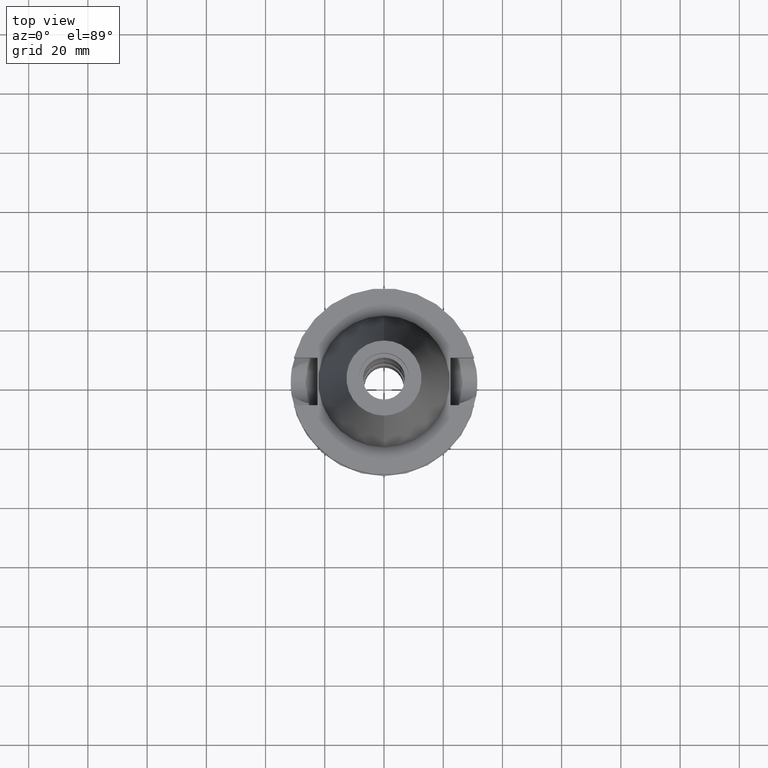
[diagram: clean part render]
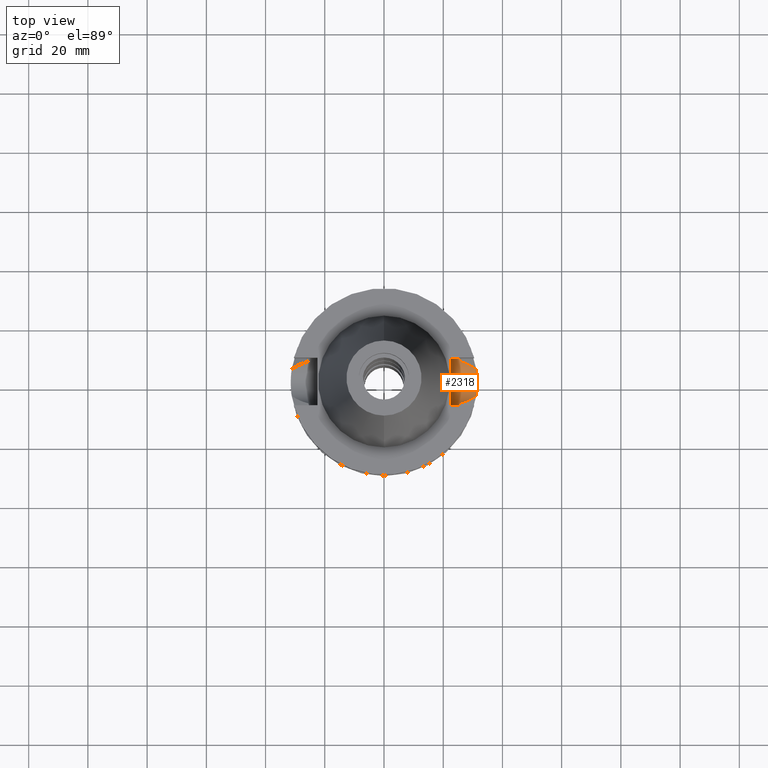
[diagram: same view with one face highlighted and labeled with its STEP entity id]
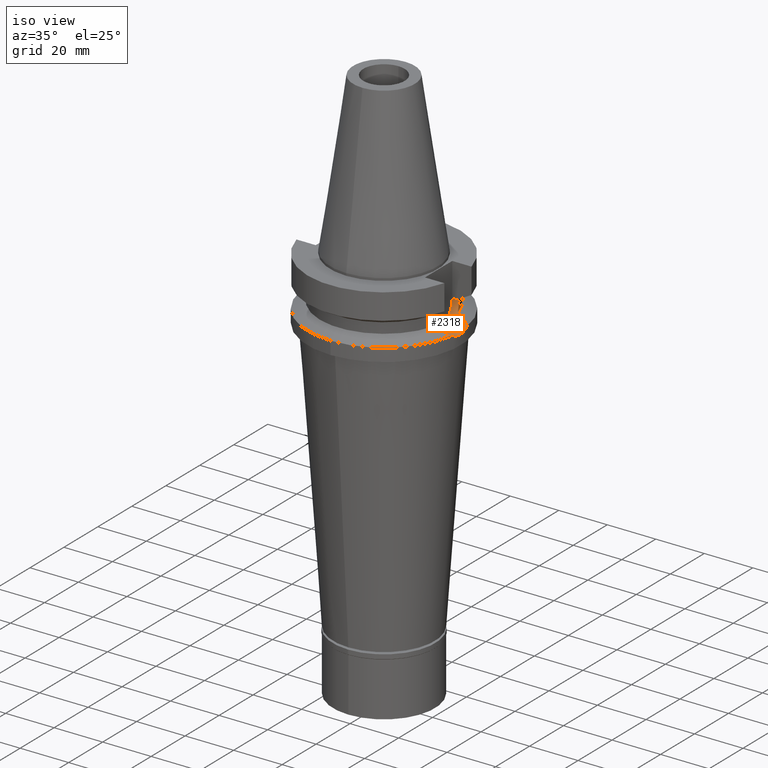
[diagram: same view with one face highlighted and labeled with its STEP entity id]
A machine part, top view. The second image highlights one B-rep face of the part: STEP entity #2318.
A second angle (iso view) of the same face is appended — the face is thin or edge-on in the first view.
In plain terms, the highlighted cylindrical surface (edge-blend (fillet) strip) has radius 8.05 mm, axis along (1, 0, 0).
Its self-contained STEP definition (entity closure, byte-faithful):
#13 = CARTESIAN_POINT ( 'NONE',  ( 25.32121872273786423, -7.815971166074350052, -16.87703378351193351 ) ) ;
#36 = CARTESIAN_POINT ( 'NONE',  ( 28.58619685348372741, -6.004470324794477953, -20.31185490828121942 ) ) ;
#48 = CARTESIAN_POINT ( 'NONE',  ( 25.33292553852030693, 7.777985707517056646, -17.02558215515331952 ) ) ;
#65 = B_SPLINE_CURVE_WITH_KNOTS ( 'NONE', 3,
 ( #910, #2586, #1869, #944, #1856, #1299, #666, #2274, #90, #1487, #13, #1234, #1979, #245 ),
 .UNSPECIFIED., .F., .F.,
 ( 4, 2, 2, 1, 1, 2, 2, 4 ),
 ( 0.0000000000000000000, 0.2499999999999960032, 0.3749999999999938938, 0.4374999999999928391, 0.4687499999999924505, 0.4843749999999923950, 0.4999999999999923395, 1.000000000000000000 ),
 .UNSPECIFIED. ) ;
#66 = CARTESIAN_POINT ( 'NONE',  ( 22.50000000000000000, -8.050000000000000711, -14.94999999999999929 ) ) ;
#68 = CARTESIAN_POINT ( 'NONE',  ( 25.32419265906722927, 7.806329682139820036, -16.91574545217583392 ) ) ;
#82 = CARTESIAN_POINT ( 'NONE',  ( 27.49028381191707737, -6.463062479085059486, -19.75193260721113830 ) ) ;
#86 = CARTESIAN_POINT ( 'NONE',  ( 31.38990480636528346, -2.631663214737754330, -22.55863313227447264 ) ) ;
#90 = CARTESIAN_POINT ( 'NONE',  ( 25.31652055493196585, -7.831184758220312681, -16.81426458566284765 ) ) ;
#94 = EDGE_CURVE ( 'NONE', #184, #1946, #482, .T. ) ;
#138 = ORIENTED_EDGE ( 'NONE', *, *, #848, .T. ) ;
#149 = EDGE_CURVE ( 'NONE', #1748, #2536, #1239, .T. ) ;
#158 = ORIENTED_EDGE ( 'NONE', *, *, #902, .T. ) ;
#174 = CARTESIAN_POINT ( 'NONE',  ( 30.82502085217578980, 4.754088187747921523, -21.45428632409289804 ) ) ;
#179 = B_SPLINE_CURVE_WITH_KNOTS ( 'NONE', 3,
 ( #969, #495, #1458, #836, #1536, #2011, #86, #2529, #305, #818, #1063, #582, #2023, #596, #2269 ),
 .UNSPECIFIED., .F., .F.,
 ( 4, 2, 2, 1, 1, 1, 2, 2, 4 ),
 ( 0.0000000000000000000, 0.2500000000000097700, 0.3750000000000146549, 0.4375000000000168754, 0.4687500000000180411, 0.4843750000000193179, 0.4921875000000195954, 0.5000000000000198730, 1.000000000000000000 ),
 .UNSPECIFIED. ) ;
#184 = VERTEX_POINT ( 'NONE', #2561 ) ;
#200 = CARTESIAN_POINT ( 'NONE',  ( 31.17899877608999759, 4.485536235554000051, -21.63449434733000132 ) ) ;
#245 = CARTESIAN_POINT ( 'NONE',  ( 25.53175183775000079, -7.097862220092999941, -18.74774300138999905 ) ) ;
#271 = CARTESIAN_POINT ( 'NONE',  ( 25.24772266958000344, -8.050000000000000711, -14.94999999999999929 ) ) ;
#284 = EDGE_CURVE ( 'NONE', #1687, #3147, #2266, .T. ) ;
#300 = CARTESIAN_POINT ( 'NONE',  ( 31.50000000000000000, 0.0000000000000000000, -23.00000000000000000 ) ) ;
#305 = CARTESIAN_POINT ( 'NONE',  ( 31.40779731677324804, -2.407006719812131657, -22.63177601695514696 ) ) ;
#327 = CARTESIAN_POINT ( 'NONE',  ( 25.53175183775000079, 7.097862220092999941, -18.74774300138999905 ) ) ;
#332 = CARTESIAN_POINT ( 'NONE',  ( 29.65997024128573401, -5.506725025681885377, -20.86030477166450936 ) ) ;
#341 = CARTESIAN_POINT ( 'NONE',  ( 28.61202683098433042, 5.992706818697253190, -20.32494134189938251 ) ) ;
#346 = CARTESIAN_POINT ( 'NONE',  ( 31.50000000000000000, 0.3826895716287472271, -23.00000000000000355 ) ) ;
#363 = VECTOR ( 'NONE', #1269, 1000.000000000000000 ) ;
#423 = CARTESIAN_POINT ( 'NONE',  ( 22.50000000000000000, 0.0000000000000000000, -14.94999999999999929 ) ) ;
#434 = CARTESIAN_POINT ( 'NONE',  ( 29.56230193585727051, 5.521611750084485237, -20.81032857518999180 ) ) ;
#482 = B_SPLINE_CURVE_WITH_KNOTS ( 'NONE', 3,
 ( #788, #1958, #753, #1751, #2019, #1993, #2924, #48, #2247, #1513, #68, #2729, #575, #2498 ),
 .UNSPECIFIED., .F., .F.,
 ( 4, 2, 2, 1, 1, 2, 2, 4 ),
 ( 0.0000000000000000000, 0.2500000000000158207, 0.3750000000000225930, 0.4375000000000273670, 0.4687500000000284772, 0.4843750000000276446, 0.5000000000000267564, 1.000000000000000000 ),
 .UNSPECIFIED. ) ;
#492 = EDGE_CURVE ( 'NONE', #3133, #2243, #3101, .T. ) ;
#495 = CARTESIAN_POINT ( 'NONE',  ( 31.23204570955487824, -4.116806570564255807, -21.88192522055955536 ) ) ;
#497 = LINE ( 'NONE', #2152, #1231 ) ;
#539 = ORIENTED_EDGE ( 'NONE', *, *, #94, .T. ) ;
#575 = CARTESIAN_POINT ( 'NONE',  ( 25.24772266957999989, 8.050000000000000711, -15.58999073686770664 ) ) ;
#582 = CARTESIAN_POINT ( 'NONE',  ( 31.41247682364344840, -2.345069939845430440, -22.65086411841247127 ) ) ;
#596 = CARTESIAN_POINT ( 'NONE',  ( 31.49999999999999289, -0.7653601880254619072, -23.00000000000000355 ) ) ;
#638 = CARTESIAN_POINT ( 'NONE',  ( 31.50000000000000000, 0.0000000000000000000, -23.00000000000000000 ) ) ;
#666 = CARTESIAN_POINT ( 'NONE',  ( 25.30215616128705136, -7.877576232114822830, -16.61085564858937857 ) ) ;
#687 = CARTESIAN_POINT ( 'NONE',  ( 28.81589597060352048, 5.897910975224247565, -20.42908943173253888 ) ) ;
#750 = ORIENTED_EDGE ( 'NONE', *, *, #1067, .T. ) ;
#753 = CARTESIAN_POINT ( 'NONE',  ( 25.44392473217580530, 7.408251102513793818, -18.11706870842442285 ) ) ;
#788 = CARTESIAN_POINT ( 'NONE',  ( 25.53175183775000079, 7.097862220092999941, -18.74774300138999905 ) ) ;
#818 = CARTESIAN_POINT ( 'NONE',  ( 31.41021000375918959, -2.375210907036503727, -22.64161853887501508 ) ) ;
#820 = ORIENTED_EDGE ( 'NONE', *, *, #492, .T. ) ;
#836 = CARTESIAN_POINT ( 'NONE',  ( 31.33669595906752292, -3.204496348448598209, -22.33738104418285531 ) ) ;
#848 = EDGE_CURVE ( 'NONE', #3147, #184, #978, .T. ) ;
#902 = EDGE_CURVE ( 'NONE', #2065, #1748, #65, .T. ) ;
#910 = CARTESIAN_POINT ( 'NONE',  ( 25.24772266958000344, -8.050000000000000711, -14.94999999999999929 ) ) ;
#944 = CARTESIAN_POINT ( 'NONE',  ( 25.27269574104415994, -7.971769475022837170, -16.08146184953472613 ) ) ;
#969 = CARTESIAN_POINT ( 'NONE',  ( 31.17899877608999759, -4.485536235554000051, -21.63449434733000132 ) ) ;
#978 = B_SPLINE_CURVE_WITH_KNOTS ( 'NONE', 3,
 ( #200, #174, #2031, #1382, #434, #3088, #1398, #687, #1901, #1648, #2758, #341, #2618, #2101, #2868, #327 ),
 .UNSPECIFIED., .F., .F.,
 ( 4, 2, 2, 1, 1, 1, 1, 2, 2, 4 ),
 ( 0.0000000000000000000, 0.2499999999999472644, 0.3749999999999202305, 0.4374999999999074074, 0.4687499999999012457, 0.4843749999998981370, 0.4921874999998969158, 0.4960937499998966382, 0.4999999999998963052, 1.000000000000000000 ),
 .UNSPECIFIED. ) ;
#1012 = EDGE_LOOP ( 'NONE', ( #138, #539, #2474, #820, #1725, #158, #2667, #750, #2983 ) ) ;
#1057 = FACE_OUTER_BOUND ( 'NONE', #1012, .T. ) ;
#1063 = CARTESIAN_POINT ( 'NONE',  ( 31.41180480594701763, -2.354042824091584940, -22.64812347152304284 ) ) ;
#1067 = EDGE_CURVE ( 'NONE', #2536, #1687, #179, .T. ) ;
#1085 = CARTESIAN_POINT ( 'NONE',  ( 30.49155746408208500, -5.007076404835790306, -21.28452212713922620 ) ) ;
#1097 = CARTESIAN_POINT ( 'NONE',  ( 31.17899877608999759, 4.485536235554000051, -21.63449434733000132 ) ) ;
#1137 = CARTESIAN_POINT ( 'NONE',  ( 31.49278049642385824, 0.7713483626019259631, -22.97266538105663614 ) ) ;
#1139 = CARTESIAN_POINT ( 'NONE',  ( 31.44585372317890304, 1.845677893369964462, -22.78619768338460005 ) ) ;
#1229 = CARTESIAN_POINT ( 'NONE',  ( 26.13688753831674205, -6.931520785423995079, -19.05862991088491043 ) ) ;
#1231 = VECTOR ( 'NONE', #1496, 1000.000000000000000 ) ;
#1234 = CARTESIAN_POINT ( 'NONE',  ( 25.36818304348086883, -7.663708172131589613, -17.48836484279778958 ) ) ;
#1239 = B_SPLINE_CURVE_WITH_KNOTS ( 'NONE', 3,
 ( #1715, #1229, #1257, #82, #2680, #2454, #1245, #2217, #36, #1973, #2069, #2825, #332, #1085, #1808 ),
 .UNSPECIFIED., .F., .F.,
 ( 4, 2, 2, 1, 1, 1, 2, 2, 4 ),
 ( 0.0000000000000000000, 0.2499999999999878986, 0.3749999999999821254, 0.4374999999999795164, 0.4687499999999785172, 0.4843749999999787392, 0.4921874999999784062, 0.4999999999999781286, 1.000000000000000000 ),
 .UNSPECIFIED. ) ;
#1245 = CARTESIAN_POINT ( 'NONE',  ( 28.28553643744512769, -6.138954215933006608, -20.15830483976862908 ) ) ;
#1257 = CARTESIAN_POINT ( 'NONE',  ( 26.70216249442934142, -6.750113020525325247, -19.34856882419195756 ) ) ;
#1269 = DIRECTION ( 'NONE',  ( -1.000000000000000000, -1.551559937893000172E-14, 0.0000000000000000000 ) ) ;
#1299 = CARTESIAN_POINT ( 'NONE',  ( 25.29454717857531776, -7.902012029789340808, -16.48868902742399101 ) ) ;
#1335 = CARTESIAN_POINT ( 'NONE',  ( 31.17899877608999759, -4.485536235554000051, -21.63449434733000132 ) ) ;
#1357 = CARTESIAN_POINT ( 'NONE',  ( 31.42560527174269325, 2.162789075918809534, -22.70431026641477601 ) ) ;
#1382 = CARTESIAN_POINT ( 'NONE',  ( 29.78709688461815119, 5.397128998590731364, -20.92508395765253582 ) ) ;
#1398 = CARTESIAN_POINT ( 'NONE',  ( 29.03141515807329043, 5.794520476043985902, -20.53918843734370014 ) ) ;
#1404 = CARTESIAN_POINT ( 'NONE',  ( 31.41414960750307017, 2.322543565497372953, -22.65768531844570077 ) ) ;
#1458 = CARTESIAN_POINT ( 'NONE',  ( 31.27810087198237099, -3.746788055358713621, -22.08602560427802786 ) ) ;
#1487 = CARTESIAN_POINT ( 'NONE',  ( 25.31954463780459363, -7.821394976198599913, -16.85491936549403391 ) ) ;
#1491 = CARTESIAN_POINT ( 'NONE',  ( 31.36321233040992240, 3.008498623022830110, -22.44996234364747423 ) ) ;
#1496 = DIRECTION ( 'NONE',  ( 1.000000000000000000, -1.551559937893000172E-14, 0.0000000000000000000 ) ) ;
#1513 = CARTESIAN_POINT ( 'NONE',  ( 25.32550226136657301, 7.802082245156339191, -16.93251888162851770 ) ) ;
#1536 = CARTESIAN_POINT ( 'NONE',  ( 31.35447971200322570, -3.025805952337123461, -22.41205623236864852 ) ) ;
#1648 = CARTESIAN_POINT ( 'NONE',  ( 28.65151147060272052, 5.974568666112110016, -20.34511215537903794 ) ) ;
#1653 = CARTESIAN_POINT ( 'NONE',  ( 31.28508993674450522, 3.748095716842307912, -22.12934347074813246 ) ) ;
#1668 = CARTESIAN_POINT ( 'NONE',  ( 25.24772266958000344, -8.050000000000000711, -14.94999999999999929 ) ) ;
#1687 = VERTEX_POINT ( 'NONE', #300 ) ;
#1714 = CARTESIAN_POINT ( 'NONE',  ( 22.50000000000000000, 0.0000000000000000000, -14.94999999999999929 ) ) ;
#1715 = CARTESIAN_POINT ( 'NONE',  ( 25.53175183775000079, -7.097862220092999941, -18.74774300138999905 ) ) ;
#1725 = ORIENTED_EDGE ( 'NONE', *, *, #2213, .F. ) ;
#1729 = LINE ( 'NONE', #271, #363 ) ;
#1748 = VERTEX_POINT ( 'NONE', #1779 ) ;
#1751 = CARTESIAN_POINT ( 'NONE',  ( 25.39164478449751527, 7.584820969894079390, -17.65194245036779108 ) ) ;
#1779 = CARTESIAN_POINT ( 'NONE',  ( 25.53175183775000079, -7.097862220092999941, -18.74774300138999905 ) ) ;
#1808 = CARTESIAN_POINT ( 'NONE',  ( 31.17899877608999759, -4.485536235554000051, -21.63449434733000132 ) ) ;
#1848 = CARTESIAN_POINT ( 'NONE',  ( 31.41516378268383036, 2.308787884451288352, -22.66181946406428338 ) ) ;
#1849 = DIRECTION ( 'NONE',  ( 0.0000000000000000000, 0.0000000000000000000, -1.000000000000000000 ) ) ;
#1856 = CARTESIAN_POINT ( 'NONE',  ( 25.28049982587671707, -7.946985634402506271, -16.24435369772011128 ) ) ;
#1869 = CARTESIAN_POINT ( 'NONE',  ( 25.25396593744603990, -8.030896968456865181, -15.59377931114939386 ) ) ;
#1873 = CARTESIAN_POINT ( 'NONE',  ( 31.41958431856491885, 2.247983644780538359, -22.67982499013886866 ) ) ;
#1901 = CARTESIAN_POINT ( 'NONE',  ( 28.70656774292663727, 5.949101747658146699, -20.37323800005152208 ) ) ;
#1905 = CARTESIAN_POINT ( 'NONE',  ( 31.17899877608999759, 4.485536235554000051, -21.63449434733000132 ) ) ;
#1946 = VERTEX_POINT ( 'NONE', #2058 ) ;
#1958 = CARTESIAN_POINT ( 'NONE',  ( 25.48481820018459132, 7.266687417048629527, -18.43221401829459083 ) ) ;
#1973 = CARTESIAN_POINT ( 'NONE',  ( 28.62833088481587041, -5.985137629908794388, -20.33337443628035146 ) ) ;
#1979 = CARTESIAN_POINT ( 'NONE',  ( 25.43788636140669723, -7.435506143574302840, -18.11669712823326606 ) ) ;
#1993 = CARTESIAN_POINT ( 'NONE',  ( 25.35411833098890355, 7.708843546315534034, -17.27003765536262136 ) ) ;
#2011 = CARTESIAN_POINT ( 'NONE',  ( 31.37853342726776162, -2.762293135434263469, -22.51181577750941898 ) ) ;
#2016 = DIRECTION ( 'NONE',  ( 1.000000000000000000, 0.0000000000000000000, 0.0000000000000000000 ) ) ;
#2019 = CARTESIAN_POINT ( 'NONE',  ( 25.37572817766058364, 7.637723572221805313, -17.49814693646417751 ) ) ;
#2023 = CARTESIAN_POINT ( 'NONE',  ( 31.47112637481020414, -1.555232886057160702, -22.89002501745331486 ) ) ;
#2031 = CARTESIAN_POINT ( 'NONE',  ( 30.43279813881855134, 5.016798738020015413, -21.25450230675697583 ) ) ;
#2058 = CARTESIAN_POINT ( 'NONE',  ( 25.24772266958000344, 8.050000000000000711, -14.94999999999999929 ) ) ;
#2065 = VERTEX_POINT ( 'NONE', #1668 ) ;
#2069 = CARTESIAN_POINT ( 'NONE',  ( 28.65634238602078909, -5.972238229234691609, -20.34768128953670541 ) ) ;
#2101 = CARTESIAN_POINT ( 'NONE',  ( 27.72606204797444107, 6.397551332563348403, -19.87234794603860166 ) ) ;
#2140 = AXIS2_PLACEMENT_3D ( 'NONE', #423, #2297, #1849 ) ;
#2152 = CARTESIAN_POINT ( 'NONE',  ( 22.50000000000000000, 8.050000000000000711, -14.94999999999999929 ) ) ;
#2213 = EDGE_CURVE ( 'NONE', #2065, #2243, #1729, .T. ) ;
#2217 = CARTESIAN_POINT ( 'NONE',  ( 28.48706665703536345, -6.049462376125012142, -20.26122724702691258 ) ) ;
#2228 = CARTESIAN_POINT ( 'NONE',  ( 31.46209760622523177, 1.552528018133348064, -22.85140752205186132 ) ) ;
#2243 = VERTEX_POINT ( 'NONE', #66 ) ;
#2247 = CARTESIAN_POINT ( 'NONE',  ( 25.32844325893327664, 7.792538688759439225, -16.96970524096579425 ) ) ;
#2258 = CARTESIAN_POINT ( 'NONE',  ( 31.47112198569541164, 1.356918673298910027, -22.88726535037577747 ) ) ;
#2266 = B_SPLINE_CURVE_WITH_KNOTS ( 'NONE', 3,
 ( #638, #346, #1137, #2258, #2228, #1139, #2562, #1357, #1873, #3063, #1848, #1404, #1491, #1653, #1905 ),
 .UNSPECIFIED., .F., .F.,
 ( 4, 2, 2, 1, 1, 1, 2, 2, 4 ),
 ( 0.0000000000000000000, 0.2499999999999947820, 0.3749999999999918954, 0.4374999999999904521, 0.4687499999999897304, 0.4843749999999896749, 0.4921874999999893419, 0.4999999999999890088, 1.000000000000000000 ),
 .UNSPECIFIED. ) ;
#2269 = CARTESIAN_POINT ( 'NONE',  ( 31.50000000000000000, 0.0000000000000000000, -23.00000000000000000 ) ) ;
#2274 = CARTESIAN_POINT ( 'NONE',  ( 25.31205759391835031, -7.845621557329949702, -16.75326793494471289 ) ) ;
#2297 = DIRECTION ( 'NONE',  ( -1.000000000000000000, 0.0000000000000000000, 0.0000000000000000000 ) ) ;
#2318 = ADVANCED_FACE ( 'NONE', ( #1057 ), #2679, .F. ) ;
#2454 = CARTESIAN_POINT ( 'NONE',  ( 28.10719083203605351, -6.214741693358593722, -20.06720988525893645 ) ) ;
#2474 = ORIENTED_EDGE ( 'NONE', *, *, #2970, .F. ) ;
#2498 = CARTESIAN_POINT ( 'NONE',  ( 25.24772266958000344, 8.050000000000000711, -14.94999999999999929 ) ) ;
#2529 = CARTESIAN_POINT ( 'NONE',  ( 31.40202432787654629, -2.481499151317003271, -22.60820932344074308 ) ) ;
#2536 = VERTEX_POINT ( 'NONE', #1335 ) ;
#2561 = CARTESIAN_POINT ( 'NONE',  ( 25.53175183775000079, 7.097862220092999941, -18.74774300138999905 ) ) ;
#2562 = CARTESIAN_POINT ( 'NONE',  ( 31.43705495319547438, 1.992185818779079742, -22.75073800057327489 ) ) ;
#2586 = CARTESIAN_POINT ( 'NONE',  ( 25.24772266957999278, -8.049999999999997158, -15.27000127552670250 ) ) ;
#2618 = CARTESIAN_POINT ( 'NONE',  ( 28.60299166328306342, 5.996842774348757565, -20.32032573018235766 ) ) ;
#2667 = ORIENTED_EDGE ( 'NONE', *, *, #149, .T. ) ;
#2679 = CYLINDRICAL_SURFACE ( 'NONE', #2799, 8.050000000000000711 ) ;
#2680 = CARTESIAN_POINT ( 'NONE',  ( 27.74302573163279106, -6.364881164125886670, -19.88114520840765564 ) ) ;
#2729 = CARTESIAN_POINT ( 'NONE',  ( 25.27269246206562414, 7.973290322419562592, -16.24535685341754387 ) ) ;
#2758 = CARTESIAN_POINT ( 'NONE',  ( 28.62783189135983974, 5.985455278648895927, -20.33301537718533325 ) ) ;
#2770 = CARTESIAN_POINT ( 'NONE',  ( 22.50000000000000000, 8.050000000000000711, -14.94999999999999929 ) ) ;
#2799 = AXIS2_PLACEMENT_3D ( 'NONE', #1714, #2016, #2988 ) ;
#2825 = CARTESIAN_POINT ( 'NONE',  ( 28.66899127748867571, -5.966394388352697753, -20.35414180539154572 ) ) ;
#2868 = CARTESIAN_POINT ( 'NONE',  ( 26.70458140746164233, 6.775471468621849347, -19.35028117580617391 ) ) ;
#2924 = CARTESIAN_POINT ( 'NONE',  ( 25.34387967354898663, 7.742345491372086386, -17.15662736176078695 ) ) ;
#2970 = EDGE_CURVE ( 'NONE', #3133, #1946, #497, .T. ) ;
#2983 = ORIENTED_EDGE ( 'NONE', *, *, #284, .T. ) ;
#2988 = DIRECTION ( 'NONE',  ( 0.0000000000000000000, 0.0000000000000000000, -1.000000000000000000 ) ) ;
#3063 = CARTESIAN_POINT ( 'NONE',  ( 31.41694045739201613, 2.284469817397010161, -22.66905814171080991 ) ) ;
#3088 = CARTESIAN_POINT ( 'NONE',  ( 29.21076771667480187, 5.704234678527939195, -20.63080043341113168 ) ) ;
#3101 = CIRCLE ( 'NONE', #2140, 8.050000000000000711 ) ;
#3133 = VERTEX_POINT ( 'NONE', #2770 ) ;
#3147 = VERTEX_POINT ( 'NONE', #1097 ) ;